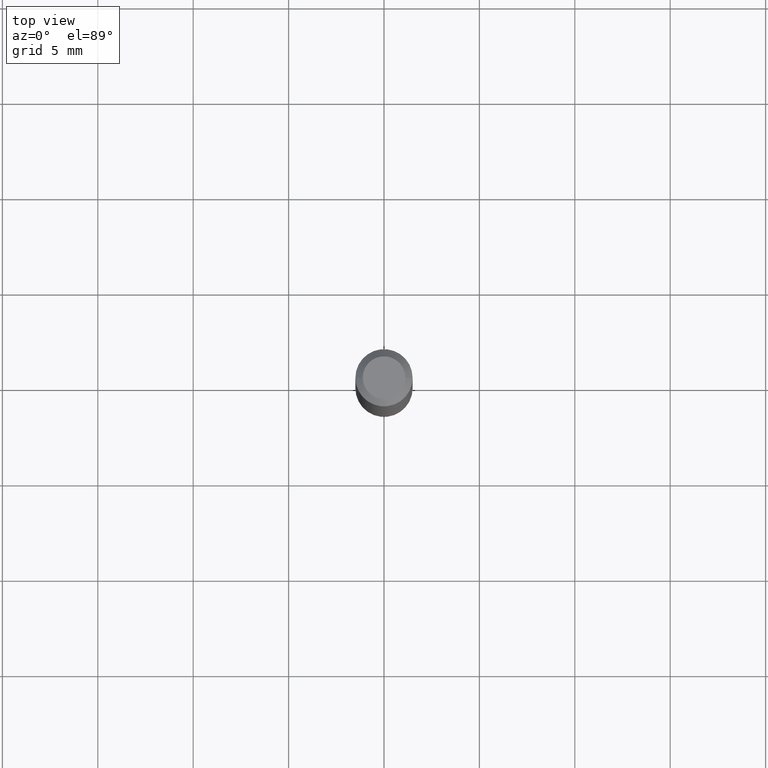
[diagram: clean part render]
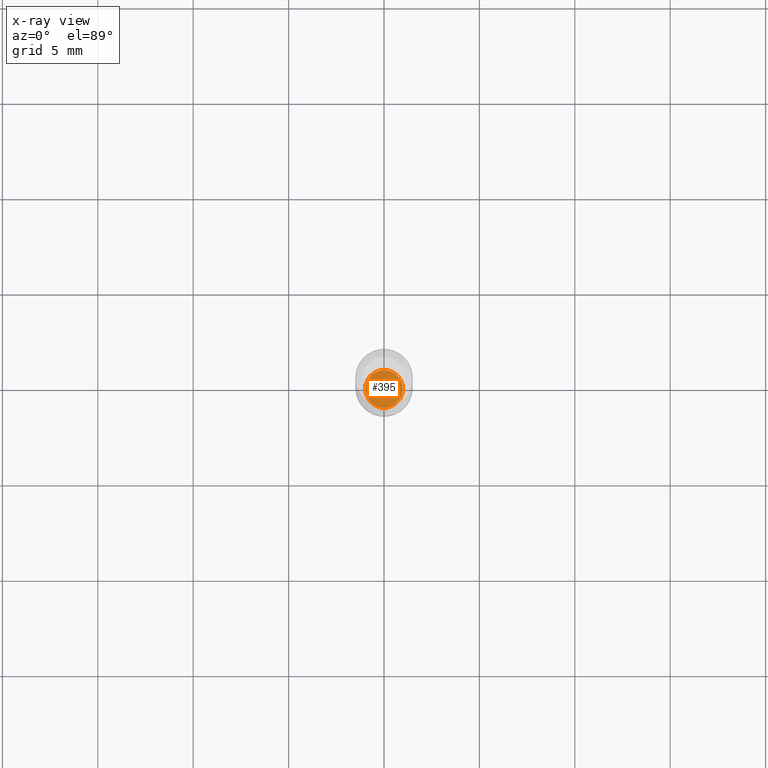
[diagram: x-ray — body ghosted, one internal face saturated and labeled with its STEP entity id]
A machine part, top view, then the same camera in x-ray: the body is ghosted and one INTERNAL B-rep face — a face not visible from any outside direction — is saturated and labeled: STEP entity #395.
In plain terms, the highlighted planar face has unit normal (-0, 0, 1).
Its self-contained STEP definition (entity closure, byte-faithful):
#31 = EDGE_CURVE ( 'NONE', #460, #140, #87, .T. ) ;
#42 = EDGE_CURVE ( 'NONE', #140, #460, #412, .T. ) ;
#43 = DIRECTION ( 'NONE',  ( 1.000000000000000000, -6.982962677686265922E-15, 4.876176775795935793E-29 ) ) ;
#55 = ORIENTED_EDGE ( 'NONE', *, *, #42, .F. ) ;
#63 = DIRECTION ( 'NONE',  ( -2.445468806185136597E-29, 3.491481338843145583E-15, 1.000000000000000000 ) ) ;
#70 = DIRECTION ( 'NONE',  ( -2.445468806185136597E-29, 3.491481338843145583E-15, 1.000000000000000000 ) ) ;
#87 = CIRCLE ( 'NONE', #291, 0.03885000000000000259 ) ;
#95 = AXIS2_PLACEMENT_3D ( 'NONE', #322, #70, #348 ) ;
#140 = VERTEX_POINT ( 'NONE', #330 ) ;
#170 = CARTESIAN_POINT ( 'NONE',  ( 3.283041872303546419E-29, -4.687313697396923253E-15, -1.342500000000000249 ) ) ;
#249 = DIRECTION ( 'NONE',  ( 1.000000000000000000, -6.982962677686256455E-15, 0.000000000000000000 ) ) ;
#262 = AXIS2_PLACEMENT_3D ( 'NONE', #448, #332, #43 ) ;
#291 = AXIS2_PLACEMENT_3D ( 'NONE', #170, #63, #249 ) ;
#306 = ORIENTED_EDGE ( 'NONE', *, *, #31, .F. ) ;
#322 = CARTESIAN_POINT ( 'NONE',  ( 3.283041872303546419E-29, -4.687313697396923253E-15, -1.342500000000000249 ) ) ;
#330 = CARTESIAN_POINT ( 'NONE',  ( -0.03885000000000000259, -4.408618617380014344E-15, -1.342500000000000249 ) ) ;
#332 = DIRECTION ( 'NONE',  ( -2.438088387897960049E-29, 3.491481338843145188E-15, 1.000000000000000000 ) ) ;
#345 = CARTESIAN_POINT ( 'NONE',  ( 0.03885000000000000259, -4.958601797425034374E-15, -1.342500000000000249 ) ) ;
#348 = DIRECTION ( 'NONE',  ( 1.000000000000000000, -6.982962677686256455E-15, 0.000000000000000000 ) ) ;
#369 = PLANE ( 'NONE',  #262 ) ;
#370 = EDGE_LOOP ( 'NONE', ( #306, #55 ) ) ;
#395 = ADVANCED_FACE ( 'NONE', ( #410 ), #369, .F. ) ;
#410 = FACE_OUTER_BOUND ( 'NONE', #370, .T. ) ;
#412 = CIRCLE ( 'NONE', #95, 0.03885000000000000259 ) ;
#448 = CARTESIAN_POINT ( 'NONE',  ( 3.283041872303546419E-29, -4.687313697396923253E-15, -1.342500000000000249 ) ) ;
#460 = VERTEX_POINT ( 'NONE', #345 ) ;